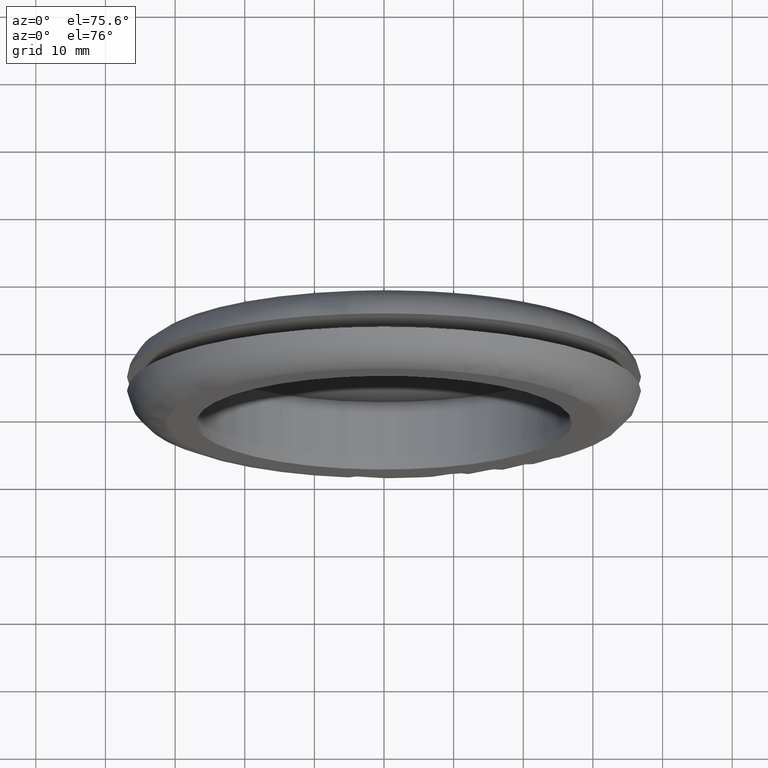
[diagram: clean part render]
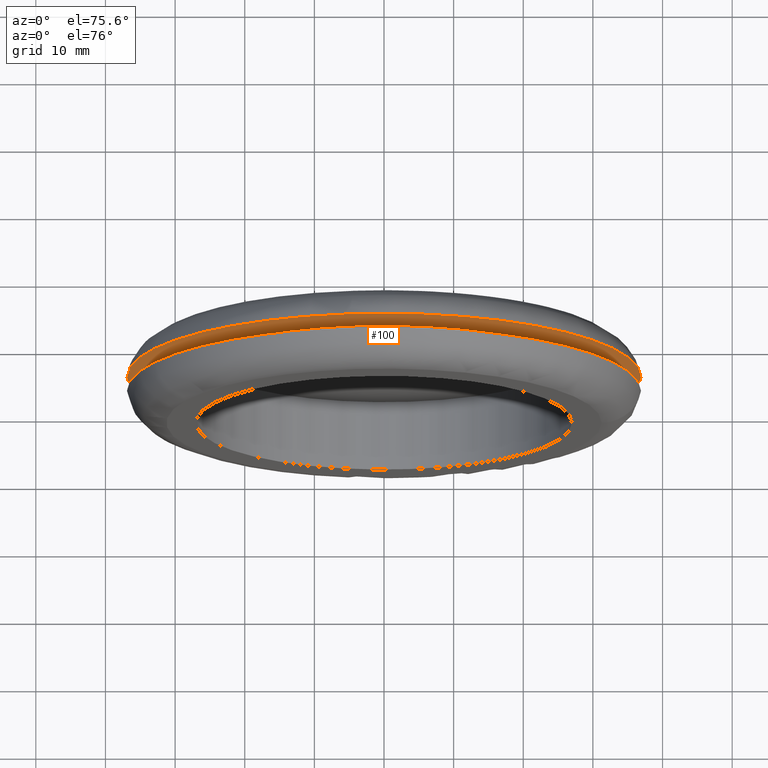
[diagram: same view with one face highlighted and labeled with its STEP entity id]
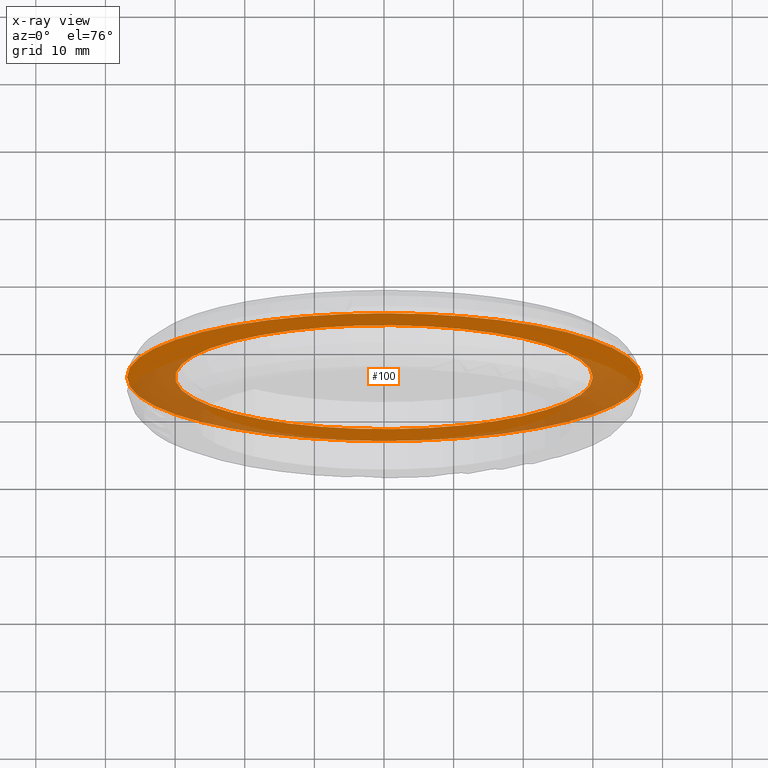
[diagram: x-ray of the same camera — body ghosted, the highlighted face saturated]
A machine part, auxiliary view. The second image highlights one B-rep face of the part: STEP entity #100.
The next image is the same camera in x-ray: the body ghosted, the highlighted face saturated — about 33% of this face is hidden behind the body in this view.
In plain terms, the highlighted planar face has unit normal (0, 1, 0).
Its self-contained STEP definition (entity closure, byte-faithful):
#19=PLANE('',#116);
#25=FACE_BOUND('',#46,.T.);
#33=FACE_OUTER_BOUND('',#45,.T.);
#45=EDGE_LOOP('',(#85));
#46=EDGE_LOOP('',(#86));
#57=CIRCLE('',#113,30.);
#59=CIRCLE('',#117,36.9123758264531);
#65=VERTEX_POINT('',#170);
#67=VERTEX_POINT('',#176);
#73=EDGE_CURVE('',#65,#65,#57,.T.);
#75=EDGE_CURVE('',#67,#67,#59,.T.);
#85=ORIENTED_EDGE('',*,*,#75,.F.);
#86=ORIENTED_EDGE('',*,*,#73,.T.);
#100=ADVANCED_FACE('',(#33,#25),#19,.F.);
#113=AXIS2_PLACEMENT_3D('',#171,#138,#139);
#116=AXIS2_PLACEMENT_3D('',#175,#144,#145);
#117=AXIS2_PLACEMENT_3D('',#177,#146,#147);
#138=DIRECTION('center_axis',(0.,1.,0.));
#139=DIRECTION('ref_axis',(1.,0.,0.));
#144=DIRECTION('center_axis',(0.,1.,0.));
#145=DIRECTION('ref_axis',(0.,0.,1.));
#146=DIRECTION('center_axis',(0.,1.,0.));
#147=DIRECTION('ref_axis',(0.,0.,-1.));
#170=CARTESIAN_POINT('',(30.,6.75,0.));
#171=CARTESIAN_POINT('Origin',(0.,6.75,0.));
#175=CARTESIAN_POINT('Origin',(30.,6.75,0.));
#176=CARTESIAN_POINT('',(36.9123758264531,6.75,0.));
#177=CARTESIAN_POINT('Origin',(0.,6.75,0.));